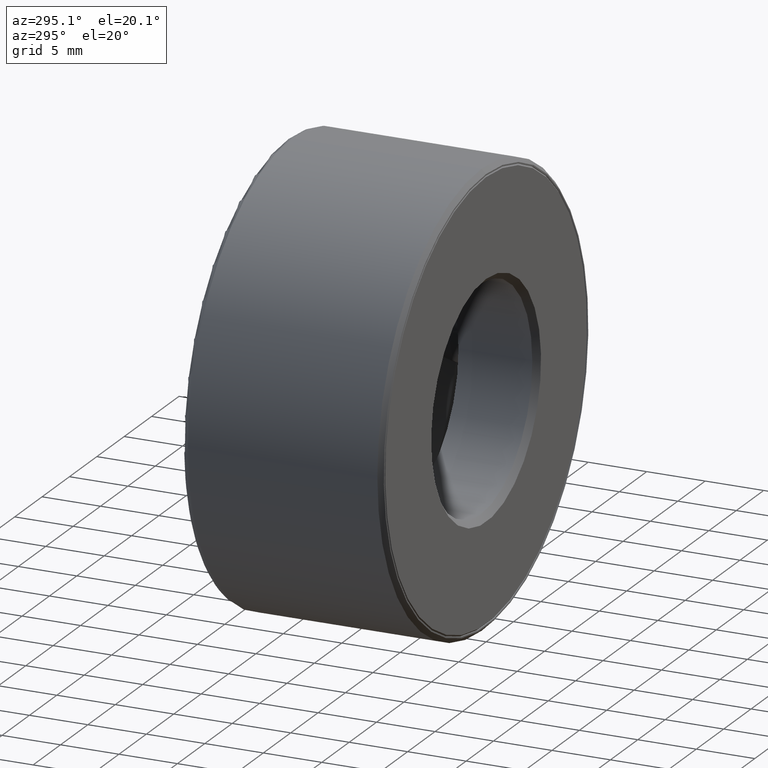
[diagram: clean part render]
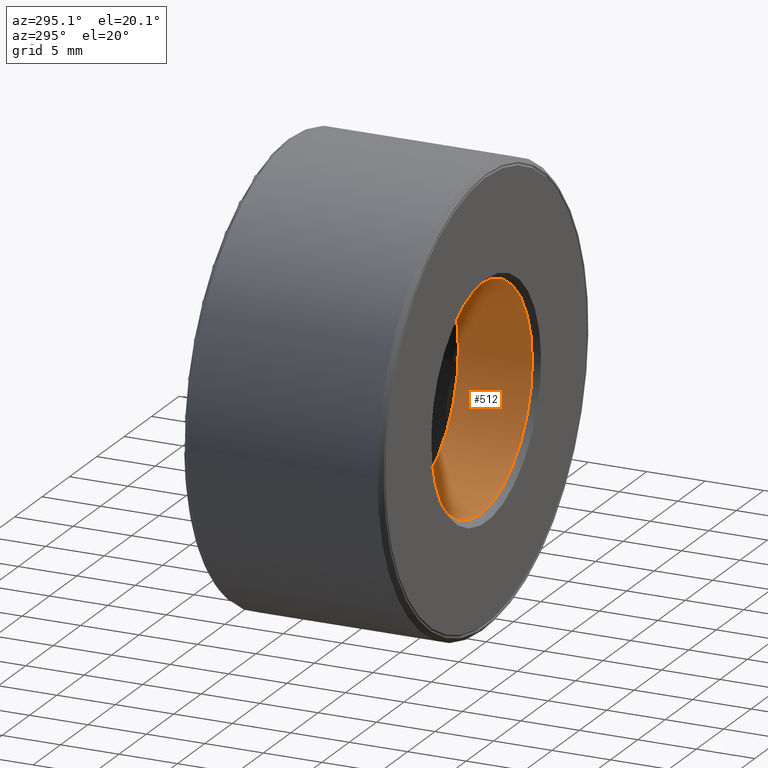
[diagram: same view with one face highlighted and labeled with its STEP entity id]
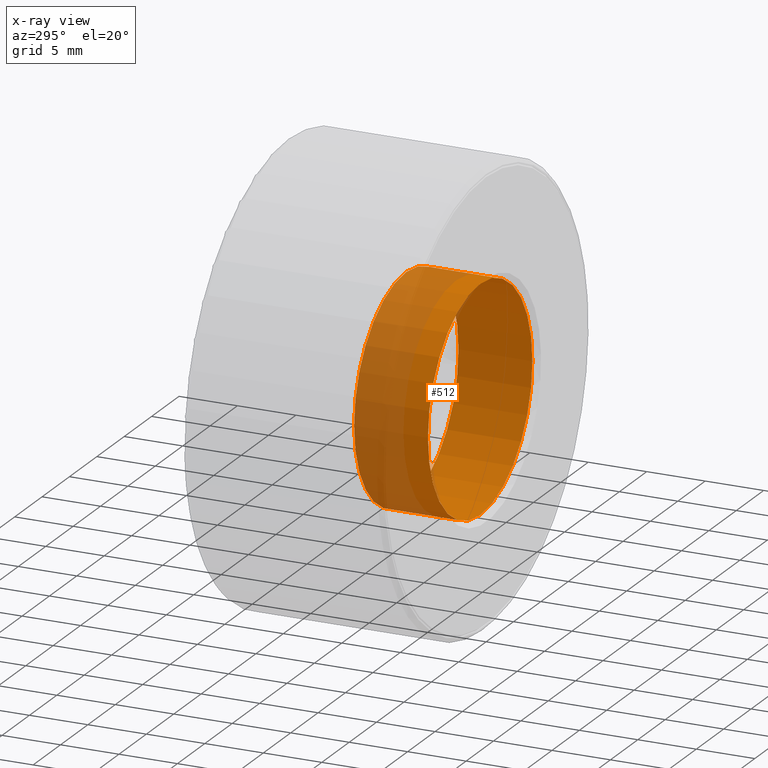
[diagram: x-ray of the same camera — body ghosted, the highlighted face saturated]
A machine part, auxiliary view. The second image highlights one B-rep face of the part: STEP entity #512.
The next image is the same camera in x-ray: the body ghosted, the highlighted face saturated — about 36% of this face is hidden behind the body in this view.
In plain terms, the highlighted cylindrical surface (bore or boss wall) has radius 9.525 mm, axis along (-0, 1, -0).
Its self-contained STEP definition (entity closure, byte-faithful):
#18 = DIRECTION ( 'NONE',  ( 0.0000000000000000000, 0.0000000000000000000, 1.000000000000000000 ) ) ;
#30 = CIRCLE ( 'NONE', #337, 0.3750000000000000600 ) ;
#66 = EDGE_CURVE ( 'NONE', #427, #427, #30, .T. ) ;
#69 = DIRECTION ( 'NONE',  ( -0.0000000000000000000, 1.000000000000000000, -0.0000000000000000000 ) ) ;
#92 = EDGE_LOOP ( 'NONE', ( #235 ) ) ;
#111 = CARTESIAN_POINT ( 'NONE',  ( 0.0000000000000000000, 0.2687500000000001600, 0.0000000000000000000 ) ) ;
#183 = DIRECTION ( 'NONE',  ( -0.0000000000000000000, 1.000000000000000000, -0.0000000000000000000 ) ) ;
#196 = ORIENTED_EDGE ( 'NONE', *, *, #373, .T. ) ;
#209 = EDGE_LOOP ( 'NONE', ( #196 ) ) ;
#226 = CARTESIAN_POINT ( 'NONE',  ( 0.0000000000000000000, 0.02000000000000005900, 0.0000000000000000000 ) ) ;
#232 = FACE_OUTER_BOUND ( 'NONE', #92, .T. ) ;
#235 = ORIENTED_EDGE ( 'NONE', *, *, #66, .F. ) ;
#282 = VERTEX_POINT ( 'NONE', #586 ) ;
#333 = CIRCLE ( 'NONE', #481, 0.3750000000000001100 ) ;
#337 = AXIS2_PLACEMENT_3D ( 'NONE', #226, #183, #474 ) ;
#338 = DIRECTION ( 'NONE',  ( 0.0000000000000000000, 0.0000000000000000000, 1.000000000000000000 ) ) ;
#373 = EDGE_CURVE ( 'NONE', #282, #282, #333, .T. ) ;
#427 = VERTEX_POINT ( 'NONE', #536 ) ;
#458 = FACE_OUTER_BOUND ( 'NONE', #209, .T. ) ;
#474 = DIRECTION ( 'NONE',  ( 0.0000000000000000000, 0.0000000000000000000, 1.000000000000000000 ) ) ;
#481 = AXIS2_PLACEMENT_3D ( 'NONE', #111, #568, #18 ) ;
#489 = CYLINDRICAL_SURFACE ( 'NONE', #551, 0.3750000000000001100 ) ;
#512 = ADVANCED_FACE ( 'NONE', ( #232, #458 ), #489, .F. ) ;
#535 = CARTESIAN_POINT ( 'NONE',  ( 0.0000000000000000000, 0.0000000000000000000, 0.0000000000000000000 ) ) ;
#536 = CARTESIAN_POINT ( 'NONE',  ( 0.0000000000000000000, 0.02000000000000005900, 0.3750000000000000600 ) ) ;
#551 = AXIS2_PLACEMENT_3D ( 'NONE', #535, #69, #338 ) ;
#568 = DIRECTION ( 'NONE',  ( -0.0000000000000000000, 1.000000000000000000, -0.0000000000000000000 ) ) ;
#586 = CARTESIAN_POINT ( 'NONE',  ( 0.0000000000000000000, 0.2687500000000001600, 0.3750000000000001100 ) ) ;